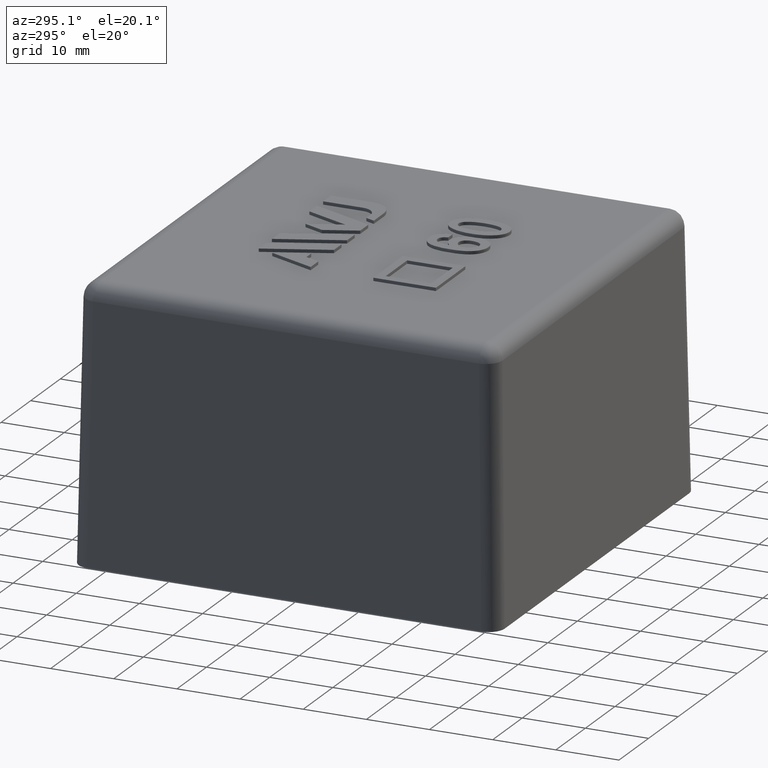
[diagram: clean part render]
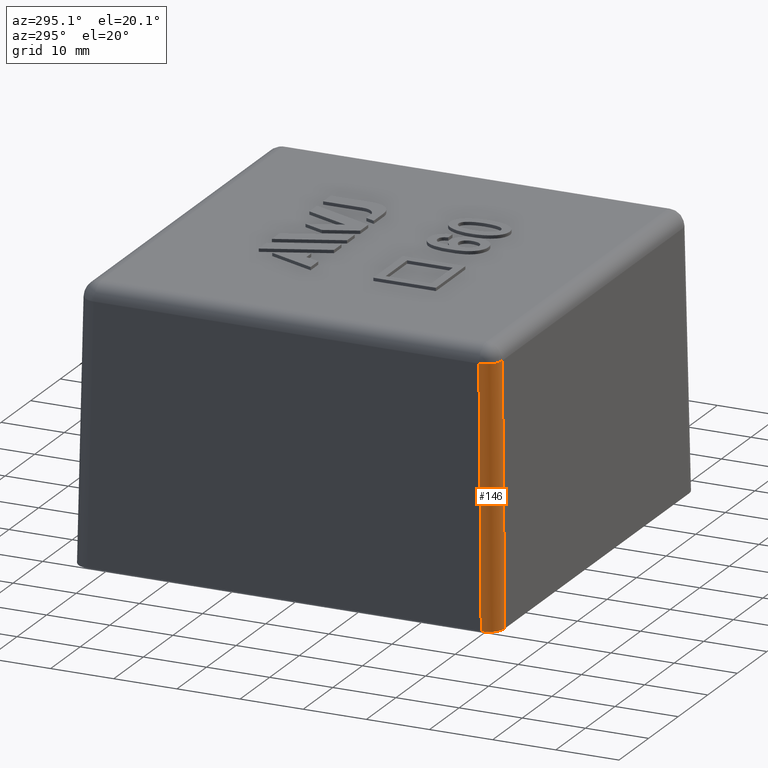
[diagram: same view with one face highlighted and labeled with its STEP entity id]
A machine part, auxiliary view. The second image highlights one B-rep face of the part: STEP entity #146.
In plain terms, the highlighted cylindrical surface (edge-blend (fillet) strip) has radius 2.5325 mm, axis along (0.0174, 0.0174, 0.9997).
Its self-contained STEP definition (entity closure, byte-faithful):
#146 = ADVANCED_FACE( '', ( #310 ), #311, .T. );
#310 = FACE_OUTER_BOUND( '', #487, .T. );
#311 = CYLINDRICAL_SURFACE( '', #488, 2.53250000000000 );
#487 = EDGE_LOOP( '', ( #1109, #1110, #1111, #1112 ) );
#488 = AXIS2_PLACEMENT_3D( '', #1113, #1114, #1115 );
#1109 = ORIENTED_EDGE( '', *, *, #1322, .F. );
#1110 = ORIENTED_EDGE( '', *, *, #1327, .T. );
#1111 = ORIENTED_EDGE( '', *, *, #1199, .F. );
#1112 = ORIENTED_EDGE( '', *, *, #1252, .F. );
#1113 = CARTESIAN_POINT( '', ( -31.2015567249807, -31.2015567249807, -0.0883695224421374 ) );
#1114 = DIRECTION( '', ( 0.0174497491606827, 0.0174497491606827, 0.999695459881888 ) );
#1115 = DIRECTION( '', ( -0.999847695156391, 0.000000000000000, 0.0174524064372835 ) );
#1199 = EDGE_CURVE( '', #1418, #1419, #1420, .T. );
#1252 = EDGE_CURVE( '', #1506, #1418, #1508, .F. );
#1322 = EDGE_CURVE( '', #1610, #1506, #1612, .F. );
#1327 = EDGE_CURVE( '', #1610, #1419, #1617, .T. );
#1418 = VERTEX_POINT( '', #1798 );
#1419 = VERTEX_POINT( '', #1799 );
#1420 = LINE( '', #1800, #1801 );
#1506 = VERTEX_POINT( '', #2019 );
#1508 = ELLIPSE( '', #2022, 2.53327148279658, 2.53250000000000 );
#1610 = VERTEX_POINT( '', #2204 );
#1612 = LINE( '', #2207, #2208 );
#1617 = CIRCLE( '', #2213, 2.53250000000000 );
#1798 = CARTESIAN_POINT( '', ( -33.7329000000000, -31.2007857120164, 0.000000000000000 ) );
#1799 = CARTESIAN_POINT( '', ( -33.0248492863210, -30.4927349983374, 40.5641982193024 ) );
#1800 = CARTESIAN_POINT( '', ( -33.7336710129643, -31.2015567249807, -0.0441713031397169 ) );
#1801 = VECTOR( '', #2270, 1000.00000000000 );
#2019 = CARTESIAN_POINT( '', ( -31.2007857120164, -33.7329000000000, 0.000000000000000 ) );
#2022 = AXIS2_PLACEMENT_3D( '', #2336, #2337, #2338 );
#2204 = CARTESIAN_POINT( '', ( -30.4927349983374, -33.0248492863210, 40.5641982193024 ) );
#2207 = CARTESIAN_POINT( '', ( -31.2015567249807, -33.7336710129643, -0.0441713031397170 ) );
#2208 = VECTOR( '', #2396, 1000.00000000000 );
#2213 = AXIS2_PLACEMENT_3D( '', #2409, #2410, #2411 );
#2270 = DIRECTION( '', ( 0.0174497491606827, 0.0174497491606827, 0.999695459881887 ) );
#2336 = CARTESIAN_POINT( '', ( -31.2000142292288, -31.2000142292288, 0.000000000000000 ) );
#2337 = DIRECTION( '', ( 0.000000000000000, 0.000000000000000, 1.00000000000000 ) );
#2338 = DIRECTION( '', ( -0.707106781186547, -0.707106781186547, 0.000000000000000 ) );
#2396 = DIRECTION( '', ( 0.0174497491606827, 0.0174497491606827, 0.999695459881887 ) );
#2409 = CARTESIAN_POINT( '', ( -30.4927349983374, -30.4927349983374, 40.5200000000000 ) );
#2410 = DIRECTION( '', ( -0.0174497491606827, -0.0174497491606827, -0.999695459881888 ) );
#2411 = DIRECTION( '', ( -0.999847695156391, 0.000000000000000, 0.0174524064372835 ) );